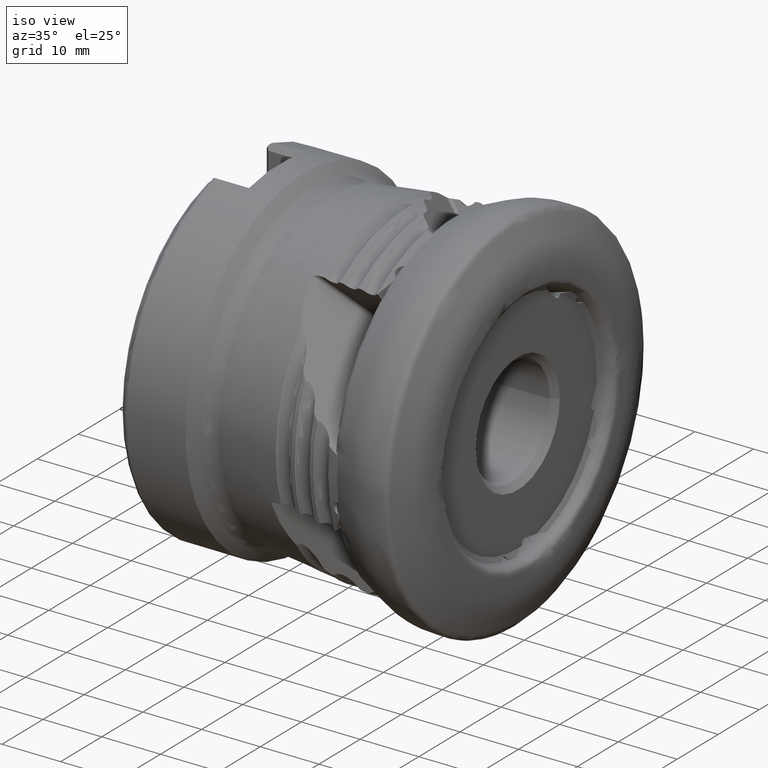
[diagram: clean part render]
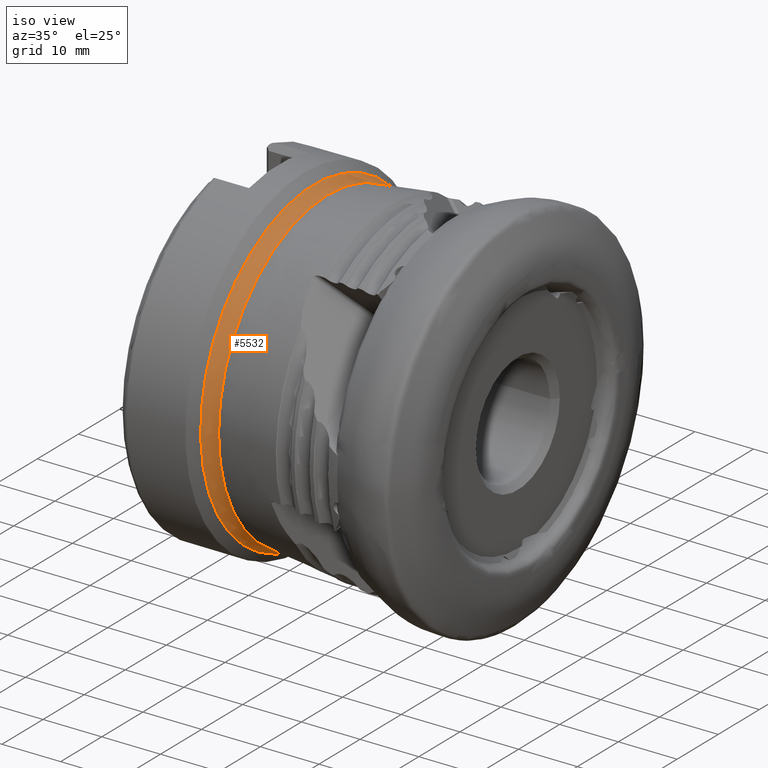
[diagram: same view with one face highlighted and labeled with its STEP entity id]
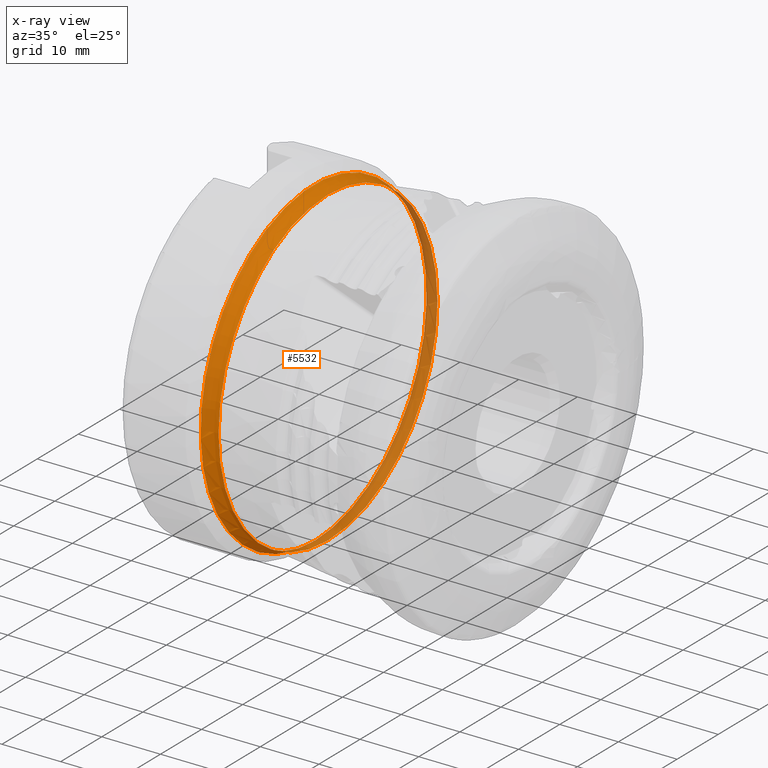
[diagram: x-ray of the same camera — body ghosted, the highlighted face saturated]
A machine part, iso view. The second image highlights one B-rep face of the part: STEP entity #5532.
The next image is the same camera in x-ray: the body ghosted, the highlighted face saturated — about 34% of this face is hidden behind the body in this view.
In plain terms, the highlighted toroidal blend (fillet) surface has major radius 29.6136 mm and minor (blend) radius 3 mm.
Its self-contained STEP definition (entity closure, byte-faithful):
#687 = TOROIDAL_SURFACE ( 'NONE', #5374, 29.61358647364018600, 2.999999999999981800 ) ;
#1211 = VERTEX_POINT ( 'NONE', #11169 ) ;
#2897 = DIRECTION ( 'NONE',  ( 1.000000000000000000, -0.0000000000000000000, -0.0000000000000000000 ) ) ;
#3381 = DIRECTION ( 'NONE',  ( 1.000000000000000000, -0.0000000000000000000, -0.0000000000000000000 ) ) ;
#3635 = VERTEX_POINT ( 'NONE', #13346 ) ;
#4379 = CARTESIAN_POINT ( 'NONE',  ( -33.80981514862103400, 0.0000000000000000000, 0.0000000000000000000 ) ) ;
#4424 = EDGE_LOOP ( 'NONE', ( #10917 ) ) ;
#5374 = AXIS2_PLACEMENT_3D ( 'NONE', #4379, #8691, #12000 ) ;
#5532 = ADVANCED_FACE ( 'NONE', ( #11758, #8839 ), #687, .F. ) ;
#6037 = CIRCLE ( 'NONE', #7782, 26.63367483018121400 ) ;
#7742 = CIRCLE ( 'NONE', #13456, 27.48087253499999600 ) ;
#7782 = AXIS2_PLACEMENT_3D ( 'NONE', #9333, #2897, #10422 ) ;
#8691 = DIRECTION ( 'NONE',  ( 1.000000000000000000, -0.0000000000000000000, -0.0000000000000000000 ) ) ;
#8711 = ORIENTED_EDGE ( 'NONE', *, *, #9040, .T. ) ;
#8839 = FACE_OUTER_BOUND ( 'NONE', #4424, .T. ) ;
#9040 = EDGE_CURVE ( 'NONE', #1211, #1211, #7742, .T. ) ;
#9333 = CARTESIAN_POINT ( 'NONE',  ( -33.46322230798890700, 0.0000000000000000000, 0.0000000000000000000 ) ) ;
#9825 = CARTESIAN_POINT ( 'NONE',  ( -35.91968037084017600, 0.0000000000000000000, 0.0000000000000000000 ) ) ;
#10366 = EDGE_LOOP ( 'NONE', ( #8711 ) ) ;
#10422 = DIRECTION ( 'NONE',  ( 0.0000000000000000000, 0.0000000000000000000, -1.000000000000000000 ) ) ;
#10691 = EDGE_CURVE ( 'NONE', #3635, #3635, #6037, .T. ) ;
#10917 = ORIENTED_EDGE ( 'NONE', *, *, #10691, .F. ) ;
#10939 = DIRECTION ( 'NONE',  ( 0.0000000000000000000, 0.0000000000000000000, -1.000000000000000000 ) ) ;
#11169 = CARTESIAN_POINT ( 'NONE',  ( -35.91968037084017600, 0.0000000000000000000, -27.48087253499999600 ) ) ;
#11758 = FACE_OUTER_BOUND ( 'NONE', #10366, .T. ) ;
#12000 = DIRECTION ( 'NONE',  ( 0.0000000000000000000, 0.0000000000000000000, -1.000000000000000000 ) ) ;
#13346 = CARTESIAN_POINT ( 'NONE',  ( -33.46322230798890700, 0.0000000000000000000, -26.63367483018121400 ) ) ;
#13456 = AXIS2_PLACEMENT_3D ( 'NONE', #9825, #3381, #10939 ) ;